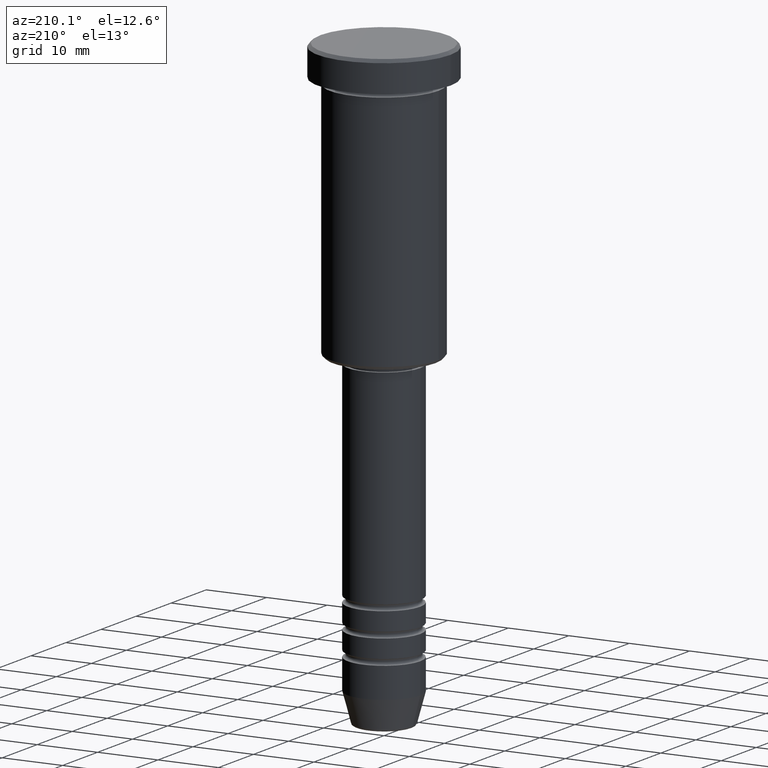
[diagram: clean part render]
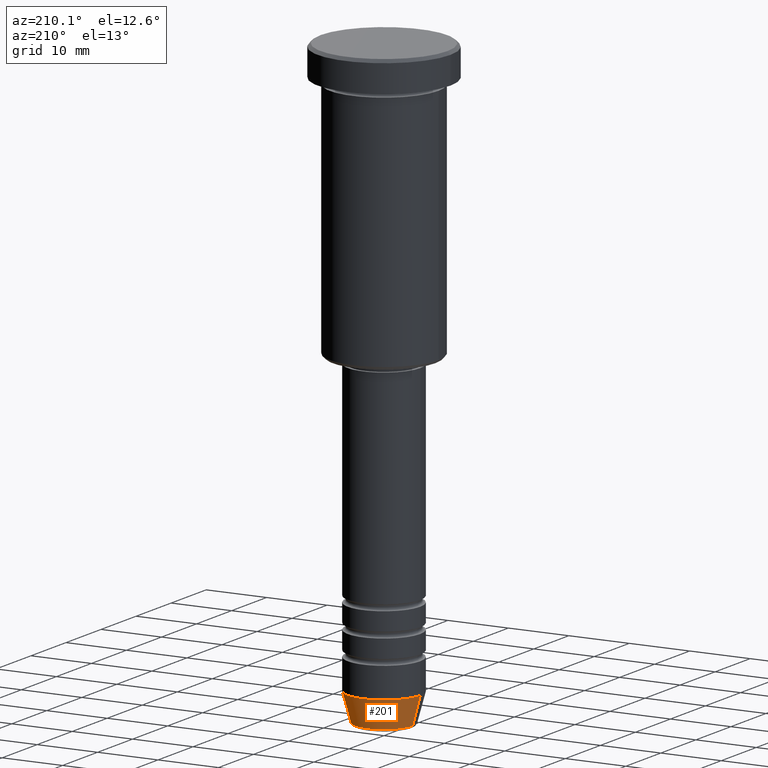
[diagram: same view with one face highlighted and labeled with its STEP entity id]
A machine part, auxiliary view. The second image highlights one B-rep face of the part: STEP entity #201.
In plain terms, the highlighted conical surface has half-angle 15 deg.
Its self-contained STEP definition (entity closure, byte-faithful):
#44 = CARTESIAN_POINT ( 'NONE',  ( -4.759553456999436882, 6.588326350684601277E-16, -99.62940952255127058 ) ) ;
#50 = VERTEX_POINT ( 'NONE', #251 ) ;
#179 = DIRECTION ( 'NONE',  ( -0.000000000000000000, -0.000000000000000000, 1.000000000000000000 ) ) ;
#180 = VERTEX_POINT ( 'NONE', #639 ) ;
#184 = EDGE_CURVE ( 'NONE', #685, #606, #198, .T. ) ;
#198 = LINE ( 'NONE', #1008, #725 ) ;
#201 = ADVANCED_FACE ( 'NONE', ( #1003 ), #213, .T. ) ;
#203 = CARTESIAN_POINT ( 'NONE',  ( 0.000000000000000000, 0.000000000000000000, -95.00000000000000000 ) ) ;
#213 = CONICAL_SURFACE ( 'NONE', #615, 6.000000000000000000, 0.2617993877991500740 ) ;
#251 = CARTESIAN_POINT ( 'NONE',  ( 4.759553456999436882, 0.000000000000000000, -99.62940952255127058 ) ) ;
#263 = DIRECTION ( 'NONE',  ( 0.2588190451025213501, 0.000000000000000000, 0.9659258262890680902 ) ) ;
#305 = AXIS2_PLACEMENT_3D ( 'NONE', #628, #1010, #635 ) ;
#344 = CIRCLE ( 'NONE', #649, 4.759553456999436882 ) ;
#375 = DIRECTION ( 'NONE',  ( -0.2588190451025213501, 3.169619151431772337E-17, 0.9659258262890680902 ) ) ;
#458 = ORIENTED_EDGE ( 'NONE', *, *, #184, .T. ) ;
#472 = CARTESIAN_POINT ( 'NONE',  ( 6.000000000000000000, 0.000000000000000000, -95.00000000000000000 ) ) ;
#548 = LINE ( 'NONE', #472, #891 ) ;
#565 = DIRECTION ( 'NONE',  ( 1.000000000000000000, 0.000000000000000000, 0.000000000000000000 ) ) ;
#606 = VERTEX_POINT ( 'NONE', #1040 ) ;
#615 = AXIS2_PLACEMENT_3D ( 'NONE', #203, #918, #565 ) ;
#628 = CARTESIAN_POINT ( 'NONE',  ( 0.000000000000000000, 0.000000000000000000, -95.00000000000000000 ) ) ;
#635 = DIRECTION ( 'NONE',  ( 1.000000000000000000, 0.000000000000000000, 0.000000000000000000 ) ) ;
#639 = CARTESIAN_POINT ( 'NONE',  ( 6.000000000000000000, 0.000000000000000000, -95.00000000000000000 ) ) ;
#649 = AXIS2_PLACEMENT_3D ( 'NONE', #1175, #179, #801 ) ;
#685 = VERTEX_POINT ( 'NONE', #44 ) ;
#725 = VECTOR ( 'NONE', #375, 1000.000000000000000 ) ;
#728 = ORIENTED_EDGE ( 'NONE', *, *, #942, .F. ) ;
#781 = ORIENTED_EDGE ( 'NONE', *, *, #1012, .T. ) ;
#801 = DIRECTION ( 'NONE',  ( 1.000000000000000000, 0.000000000000000000, 0.000000000000000000 ) ) ;
#891 = VECTOR ( 'NONE', #263, 1000.000000000000000 ) ;
#918 = DIRECTION ( 'NONE',  ( -0.000000000000000000, -0.000000000000000000, 1.000000000000000000 ) ) ;
#942 = EDGE_CURVE ( 'NONE', #50, #180, #548, .T. ) ;
#949 = EDGE_LOOP ( 'NONE', ( #781, #458, #974, #728 ) ) ;
#974 = ORIENTED_EDGE ( 'NONE', *, *, #979, .F. ) ;
#979 = EDGE_CURVE ( 'NONE', #180, #606, #1030, .T. ) ;
#1003 = FACE_OUTER_BOUND ( 'NONE', #949, .T. ) ;
#1008 = CARTESIAN_POINT ( 'NONE',  ( -6.000000000000000000, 7.347880794884119736E-16, -95.00000000000000000 ) ) ;
#1010 = DIRECTION ( 'NONE',  ( -0.000000000000000000, -0.000000000000000000, 1.000000000000000000 ) ) ;
#1012 = EDGE_CURVE ( 'NONE', #50, #685, #344, .T. ) ;
#1030 = CIRCLE ( 'NONE', #305, 6.000000000000000000 ) ;
#1040 = CARTESIAN_POINT ( 'NONE',  ( -6.000000000000000000, 7.347880794884119736E-16, -95.00000000000000000 ) ) ;
#1175 = CARTESIAN_POINT ( 'NONE',  ( 0.000000000000000000, 0.000000000000000000, -99.62940952255127058 ) ) ;